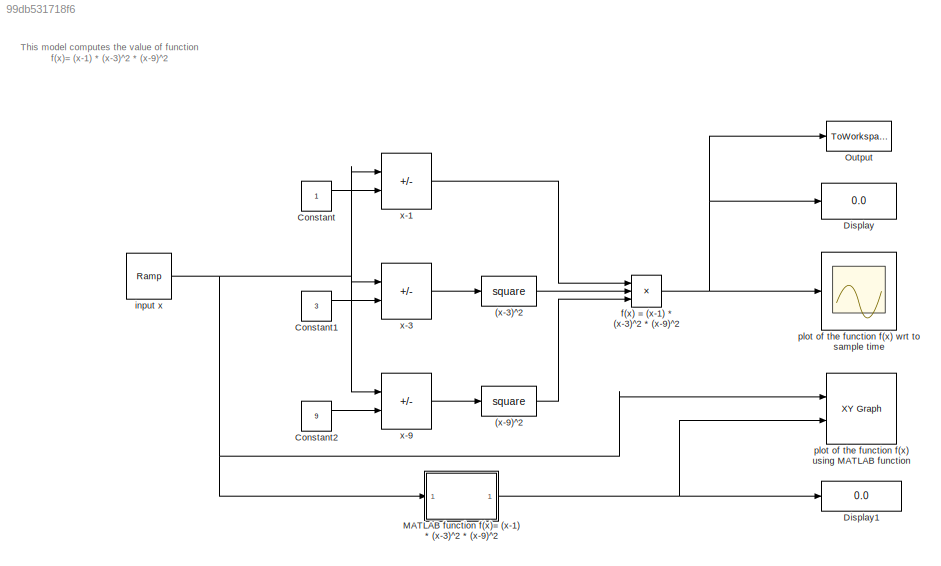
MODEL slx_99db531718f6
KIND model
CONFIG AbsTol = auto
CONFIG EnableMultiTasking = off
CONFIG FixedStep = auto
CONFIG MaxStep = auto
CONFIG MinStep = auto
CONFIG RelTol = 1e-3
CONFIG SampleTimeConstraint = Unconstrained
CONFIG Solver = VariableStepAuto
CONFIG SolverName = VariableStepAuto
CONFIG StartTime = 0.0
CONFIG StopTime = 10
BLOCK [Product]  f(x) = (x-1) * (x-3)^2 * (x-9)^2
  Inputs = 3
  Ports = [3, 1]
BLOCK [Math] (x-3)^2
  Operator = square
  Ports = [1, 1]
BLOCK [Math] (x-9)^2
  Operator = square
  Ports = [1, 1]
BLOCK [Constant] Constant
BLOCK [Constant] Constant1
  Value = 3
BLOCK [Constant] Constant2
  Value = 9
BLOCK [Display] Display
  Decimation = 1
  Ports = [1]
BLOCK [Display] Display1
  Decimation = 1
  Ports = [1]
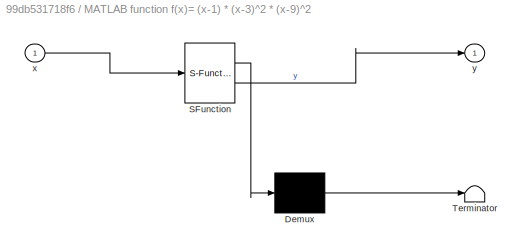
BLOCK [SubSystem] MATLAB function f(x)= (x-1) * (x-3)^2 * (x-9)^2 
  ErrorFcn = Stateflow.Translate.translate
  PermitHierarchicalResolution = ExplicitOnly
  Ports = [1, 1]
  RequestExecContextInheritance = off
  SFBlockType = MATLAB Function
  TreatAsAtomicUnit = on
BLOCK [Demux] MATLAB function f(x)= (x-1) * (x-3)^2 * (x-9)^2 / Demux 
  Outputs = 1
  Ports = [1, 1]
BLOCK [S-Function] MATLAB function f(x)= (x-1) * (x-3)^2 * (x-9)^2 / SFunction 
  EnableBusSupport = on
  FunctionName = sf_sfun
  PortCounts = [1 2]
  Ports = [1, 2]
  SFcnIsStateOwnerBlock = off
  SFunctionDeploymentMode = off
  Tag = Stateflow S-Function 2
BLOCK [Terminator] MATLAB function f(x)= (x-1) * (x-3)^2 * (x-9)^2 / Terminator 
BLOCK [Inport] MATLAB function f(x)= (x-1) * (x-3)^2 * (x-9)^2 /x
BLOCK [Outport] MATLAB function f(x)= (x-1) * (x-3)^2 * (x-9)^2 /y
BLOCK [ToWorkspace] Output 
  FixptAsFi = on
  MaxDataPoints = inf
  Ports = [1]
  SampleTime = -1
  SaveFormat = Timeseries
  VariableName = output
BLOCK [Reference] input x  REF=simulink/Sources/Ramp
  Ports = [0, 1]
  SourceBlock = simulink/Sources/Ramp
  SourceProductBaseCode = SL
  SourceType = Ramp
BLOCK [Reference] plot of the function f(x) using MATLAB function  REF=simulink/Sinks/XY Graph
  Ports = [2]
  SourceBlock = simulink/Sinks/XY Graph
  SourceProductBaseCode = SL
  SourceType = XY scope.
BLOCK [Scope] plot of the function f(x) wrt to sample time
  Floating = off
  NumInputPorts = 1
  Ports = [1]
  ScopeSpecificationString = Simulink.scopes.TimeScopeBlockCfg('CurrentConfiguration', extmgr.ConfigurationSet(extmgr.Configuration('Core','General UI',true,'FigureColor',[1 1 1]),extmgr.Configuration('Core','Source UI',true),extmgr.Configuration('Sources','WiredSimulink',true),extmgr.Configuration('Visuals','Time Domain',true,'SerializedDisplays',{struct('MinYLimReal','-875.25','MaxYLimReal','587.25','YLabelReal','','MinYLim...<+1597ch>
BLOCK [Sum] x-1
  IconShape = rectangular
  Inputs = +-
  Ports = [2, 1]
BLOCK [Sum] x-3
  IconShape = rectangular
  Inputs = +-
  Ports = [2, 1]
BLOCK [Sum] x-9
  IconShape = rectangular
  Inputs = +-
  Ports = [2, 1]
ANNOTATION (root): This model computes the value of function f(x)= (x-1) * (x-3)^2 * (x-9)^2
NET  f(x) = (x-1) * (x-3)^2 * (x-9)^2:1 -> Display:1, Output :1, plot of the function f(x) wrt to sample time:1
LINE (x-3)^2:1 ->  f(x) = (x-1) * (x-3)^2 * (x-9)^2:2
LINE (x-9)^2:1 ->  f(x) = (x-1) * (x-3)^2 * (x-9)^2:3
LINE Constant1:1 -> x-3:2
LINE Constant2:1 -> x-9:2
LINE Constant:1 -> x-1:2
NET MATLAB function f(x)= (x-1) * (x-3)^2 * (x-9)^2 :1 -> Display1:1, plot of the function f(x) using MATLAB function:2
NET input x:1 -> MATLAB function f(x)= (x-1) * (x-3)^2 * (x-9)^2 :1, plot of the function f(x) using MATLAB function:1, x-1:1, x-3:1, x-9:1
LINE x-1:1 ->  f(x) = (x-1) * (x-3)^2 * (x-9)^2:1
LINE x-3:1 -> (x-3)^2:1
LINE x-9:1 -> (x-9)^2:1
note: NET lines group one-source signal fan-out (src -> all destinations, sorted); 1:1 wires keep LINE
CHART MATLAB function f(x)= (x-1) * (x-3)^2 * (x-9)^2  states=1 transitions=1
  STATE_LABEL 'eML_blk_kernel()'
  STATE_LABEL 'SCRIPT:\nfunction y = fcn(x)\n\n \n y = (x-1) * (x-3)^2 * (x-9)^2;\nend\n'
CHART  states=0 transitions=0
